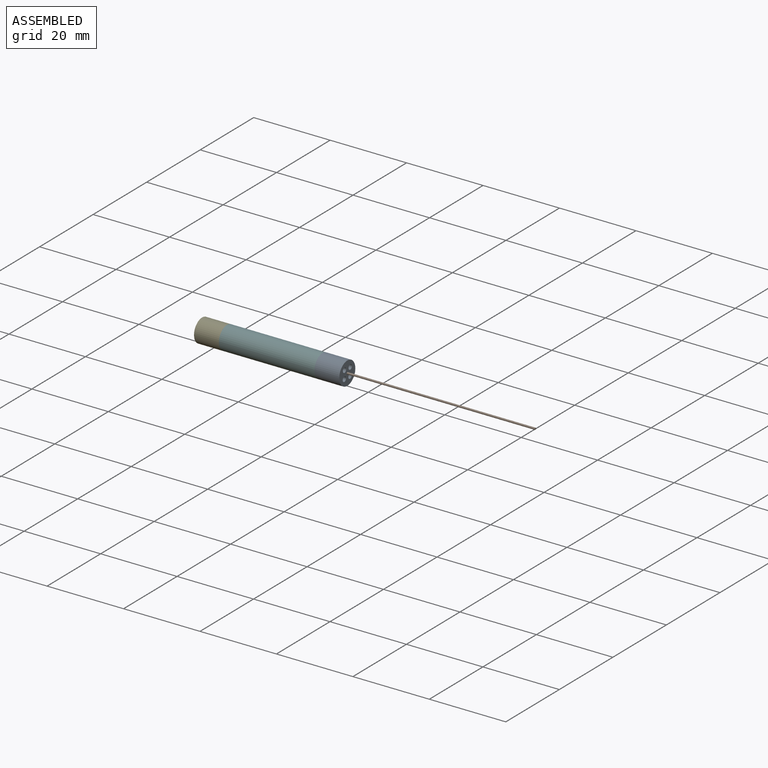
[diagram: assembled view]
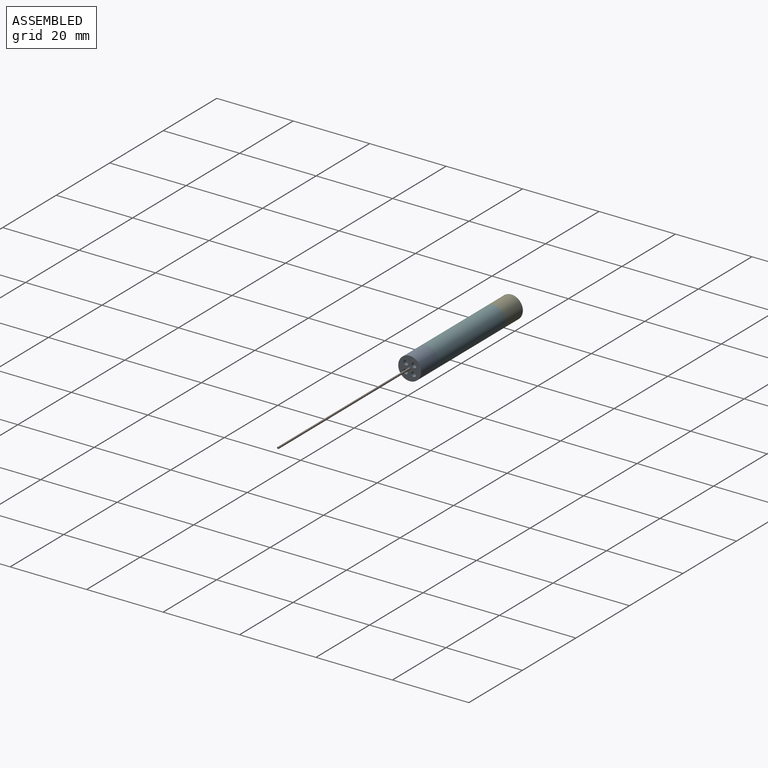
[diagram: assembled view, second angle]
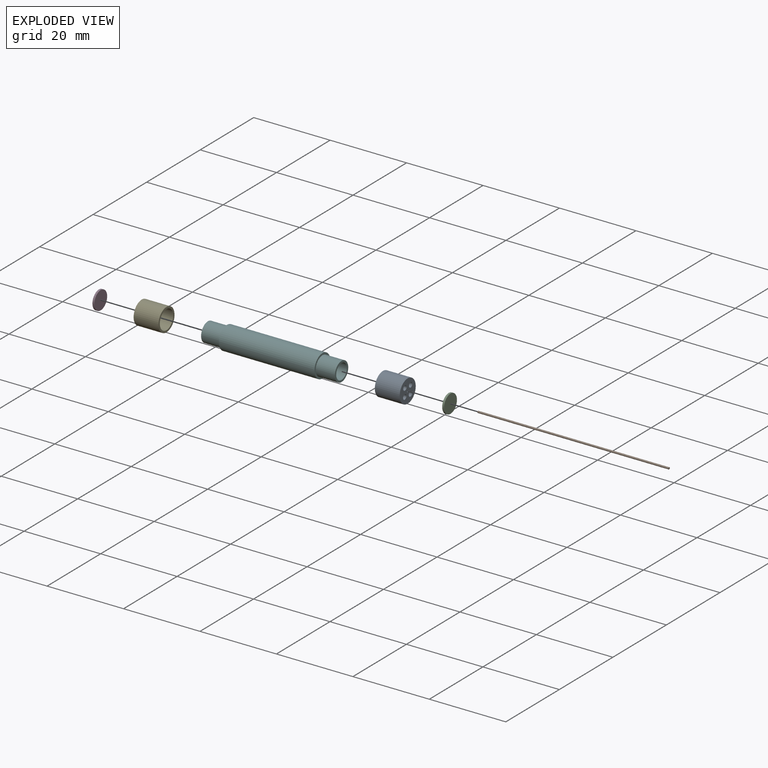
[diagram: exploded view]
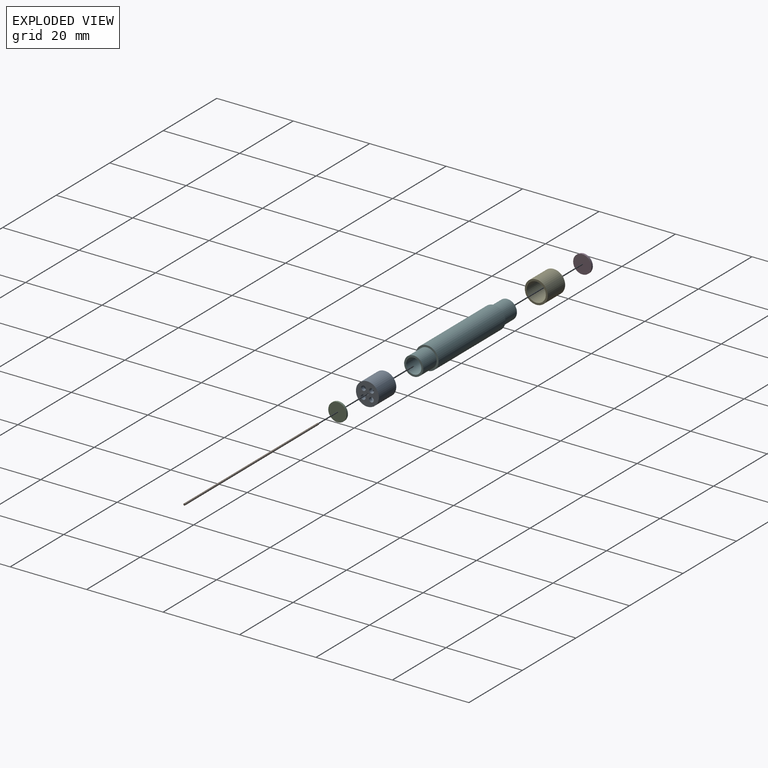
[diagram: exploded view, second angle]
ASSEMBLY  parts=6 mates=5
PART A: 11 faces, bbox 6x6x6.5 mm
  f0: cylinder r=3mm len=6.5mm, axis (0,0,1), area 122.5mm2, adj f2,f4
  f1: cylinder r=2.5mm len=5.5mm, axis (0,0,1), area 86.4mm2, adj f2,f3
  f2: plane 6x6mm, normal (0,0,1), area 8.6mm2, adj f0,f1
  f3: plane 5x5mm, normal (0,0,1), area 14.7mm2, adj f1,f5,f6,f7,f8
  f4: plane 6x6mm, normal (0,0,-1), area 23.2mm2, adj f0,f5,f6,f7,f8,f9
  f5: cylinder r=0.62mm len=1.25mm, axis (0,0,-1), area 3.9mm2, adj f3,f4
  f6: cylinder r=0.62mm len=1.25mm, axis (0,0,-1), area 3.9mm2, adj f3,f4
  f7: cylinder r=0.62mm len=1.25mm, axis (0,0,-1), area 3.9mm2, adj f3,f4
  f8: cylinder r=0.62mm len=1.25mm, axis (0,0,-1), area 3.9mm2, adj f3,f4
  f9: cylinder r=0.25mm len=0.8mm, axis (0,0,-1), area 1.3mm2, adj f4,f10
  f10: plane 0.5x0.5mm, normal (0,0,-1), area 0.2mm2, adj f9
PART B: 3 faces, bbox 0.5x0.5x50 mm
  f0: cylinder r=0.25mm len=50mm, axis (0,0,-1), area 78.5mm2, adj f1,f2
  f1: plane 0.5x0.5mm, normal (0,0,1), area 0.2mm2, adj f0
  f2: plane 0.5x0.5mm, normal (0,0,-1), area 0.2mm2, adj f0
PART C: 3 faces, bbox 4.8x4.8x0.5 mm
  f0: cylinder r=2.4mm len=4.8mm, axis (0,0,-1), area 7.5mm2, adj f1,f2
  f1: plane 4.8x4.8mm, normal (0,0,1), area 18.1mm2, adj f0
  f2: plane 4.8x4.8mm, normal (0,0,-1), area 18.1mm2, adj f0
PART D: same geometry as C
PART E: same geometry as A
PART F: 8 faces, bbox 6x6x35 mm
  f0: cylinder r=3mm len=25mm, axis (0,0,-1), area 471.2mm2, adj f1,f2
  f1: plane 6x6mm, normal (0,0,1), area 8.6mm2, adj f0,f6
  f2: plane 6x6mm, normal (0,0,-1), area 8.6mm2, adj f0,f4
  f3: plane 5x5mm, normal (0,0,-1), area 7.1mm2, adj f4,f5
  f4: cylinder r=2.5mm len=5mm, axis (0,0,-1), area 78.5mm2, adj f2,f3
  f5: cylinder r=2mm len=35mm, axis (0,0,-1), area 439.8mm2, adj f3,f7
  f6: cylinder r=2.5mm len=5mm, axis (0,0,-1), area 78.5mm2, adj f1,f7
  f7: plane 5x5mm, normal (0,0,1), area 7.1mm2, adj f5,f6
PLACE A rot(axis=(-0.37,-0.85,0.37),99.1deg) t=(29.59,-2.24,8.52)mm
PLACE B rot(axis=(0.34,-0.87,-0.34),97.8deg) t=(85.29,-2.24,8.52)mm
PLACE C rot(axis=(0.28,-0.92,-0.28),95deg) t=(35.09,-2.24,8.52)mm
PLACE D rot(axis=(-0.37,-0.85,0.37),99.1deg) t=(-0.41,-2.24,8.52)mm
PLACE E rot(axis=(0.51,0.69,0.51),110.5deg) t=(4.59,-2.24,8.52)mm
PLACE F rot(axis=(0.34,-0.87,-0.34),97.7deg) t=(29.59,-2.24,8.52)mm
MATE revolute E.f1 <-> F.f4  axis (1,0,0) through (4.59,-2.24,8.52)mm
MATE revolute A.f1 <-> F.f4  axis (-1,0,0) through (29.59,-2.24,8.52)mm
MATE revolute B.f0 <-> A.f9  axis (-1,0,0) through (35.29,-2.24,8.52)mm
MATE revolute D.f0 <-> F.f5  axis (1,0,0) through (-0.41,-2.24,8.52)mm
MATE revolute F.f4 <-> C.f0  axis (1,0,0) through (34.59,-2.24,8.52)mm
